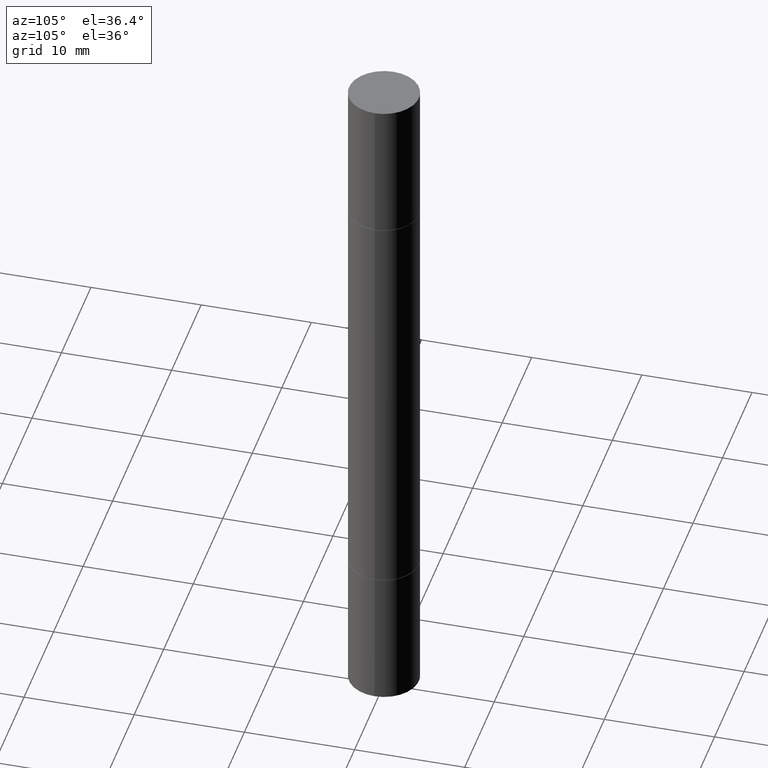
[diagram: clean part render]
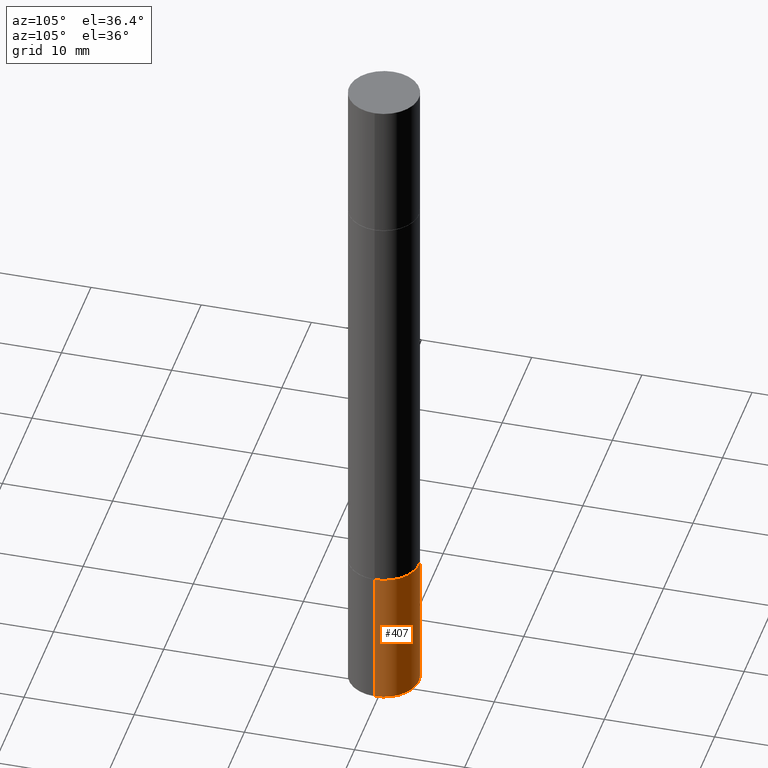
[diagram: same view with one face highlighted and labeled with its STEP entity id]
A machine part, auxiliary view. The second image highlights one B-rep face of the part: STEP entity #407.
In plain terms, the highlighted cylindrical surface (edge-blend (fillet) strip) has radius 3.175 mm, axis along (-0, 0, 1).
Its self-contained STEP definition (entity closure, byte-faithful):
#42 = DIRECTION ( 'NONE',  ( -2.445468806185136877E-29, 3.491481338843145188E-15, 1.000000000000000000 ) ) ;
#73 = ORIENTED_EDGE ( 'NONE', *, *, #239, .F. ) ;
#91 = CARTESIAN_POINT ( 'NONE',  ( 0.1250000000000000000, -7.855833012397075293E-15, -2.000000000000000000 ) ) ;
#95 = FACE_OUTER_BOUND ( 'NONE', #489, .T. ) ;
#114 = DIRECTION ( 'NONE',  ( 1.000000000000000000, -6.982962677686266711E-15, 4.876176775795935793E-29 ) ) ;
#124 = DIRECTION ( 'NONE',  ( 1.000000000000000000, -6.982962677686270655E-15, 0.000000000000000000 ) ) ;
#129 = ORIENTED_EDGE ( 'NONE', *, *, #166, .T. ) ;
#156 = VERTEX_POINT ( 'NONE', #172 ) ;
#166 = EDGE_CURVE ( 'NONE', #383, #156, #600, .T. ) ;
#172 = CARTESIAN_POINT ( 'NONE',  ( -0.1250000000000000000, -6.967654592696952427E-15, -2.000000000000000000 ) ) ;
#195 = DIRECTION ( 'NONE',  ( -2.445468806185136597E-29, 3.491481338843145583E-15, 1.000000000000000000 ) ) ;
#202 = ORIENTED_EDGE ( 'NONE', *, *, #424, .F. ) ;
#207 = VERTEX_POINT ( 'NONE', #91 ) ;
#239 = EDGE_CURVE ( 'NONE', #654, #207, #248, .T. ) ;
#248 = LINE ( 'NONE', #400, #275 ) ;
#256 = CIRCLE ( 'NONE', #341, 0.1250000000000000000 ) ;
#275 = VECTOR ( 'NONE', #619, 39.37007874015748143 ) ;
#279 = DIRECTION ( 'NONE',  ( -2.445468806185136597E-29, 3.491481338843145583E-15, 1.000000000000000000 ) ) ;
#306 = CYLINDRICAL_SURFACE ( 'NONE', #499, 0.1250000000000000000 ) ;
#341 = AXIS2_PLACEMENT_3D ( 'NONE', #535, #195, #351 ) ;
#351 = DIRECTION ( 'NONE',  ( 1.000000000000000000, -6.982962677686270655E-15, 0.000000000000000000 ) ) ;
#375 = EDGE_CURVE ( 'NONE', #654, #383, #575, .T. ) ;
#383 = VERTEX_POINT ( 'NONE', #542 ) ;
#398 = CARTESIAN_POINT ( 'NONE',  ( 0.1250000000000000000, -9.601573681818648281E-15, -2.500000000000000000 ) ) ;
#400 = CARTESIAN_POINT ( 'NONE',  ( 0.1250000000000000000, -8.728703347107833388E-16, 6.095220969744919741E-30 ) ) ;
#407 = ADVANCED_FACE ( 'NONE', ( #95 ), #306, .T. ) ;
#424 = EDGE_CURVE ( 'NONE', #207, #156, #256, .T. ) ;
#430 = DIRECTION ( 'NONE',  ( -2.445468806185136597E-29, 3.491481338843145583E-15, 1.000000000000000000 ) ) ;
#444 = VECTOR ( 'NONE', #42, 39.37007874015748143 ) ;
#489 = EDGE_LOOP ( 'NONE', ( #637, #129, #202, #73 ) ) ;
#499 = AXIS2_PLACEMENT_3D ( 'NONE', #587, #430, #114 ) ;
#501 = CARTESIAN_POINT ( 'NONE',  ( -0.1250000000000000000, 8.881784197001252323E-16, -6.148668862818632227E-30 ) ) ;
#511 = AXIS2_PLACEMENT_3D ( 'NONE', #595, #279, #124 ) ;
#535 = CARTESIAN_POINT ( 'NONE',  ( 4.890937612370273194E-29, -6.982962677686291165E-15, -2.000000000000000000 ) ) ;
#542 = CARTESIAN_POINT ( 'NONE',  ( -0.1250000000000000000, -6.967654592696952427E-15, -2.500000000000000000 ) ) ;
#575 = CIRCLE ( 'NONE', #511, 0.1250000000000000000 ) ;
#587 = CARTESIAN_POINT ( 'NONE',  ( 0.000000000000000000, 0.000000000000000000, 0.000000000000000000 ) ) ;
#595 = CARTESIAN_POINT ( 'NONE',  ( 6.113672015462842613E-29, -8.728703347107864943E-15, -2.500000000000000000 ) ) ;
#600 = LINE ( 'NONE', #501, #444 ) ;
#619 = DIRECTION ( 'NONE',  ( -2.445468806185136877E-29, 3.491481338843145188E-15, 1.000000000000000000 ) ) ;
#637 = ORIENTED_EDGE ( 'NONE', *, *, #375, .T. ) ;
#654 = VERTEX_POINT ( 'NONE', #398 ) ;